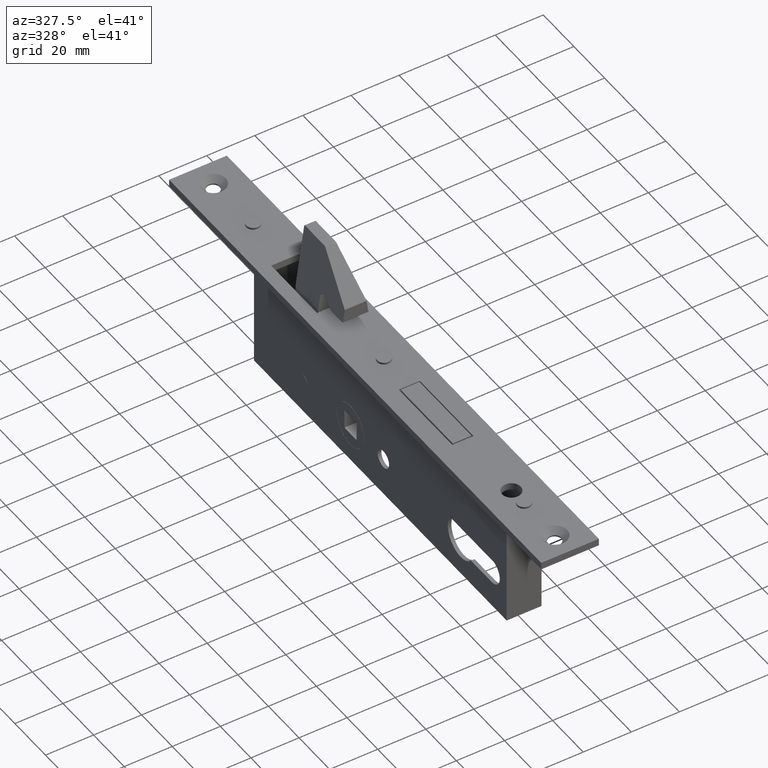
[diagram: clean part render]
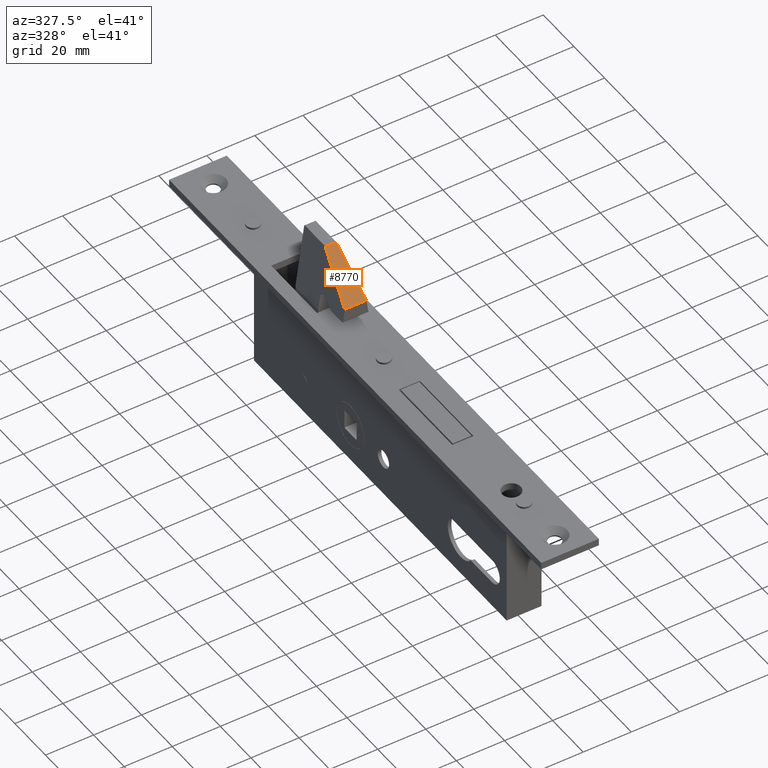
[diagram: same view with one face highlighted and labeled with its STEP entity id]
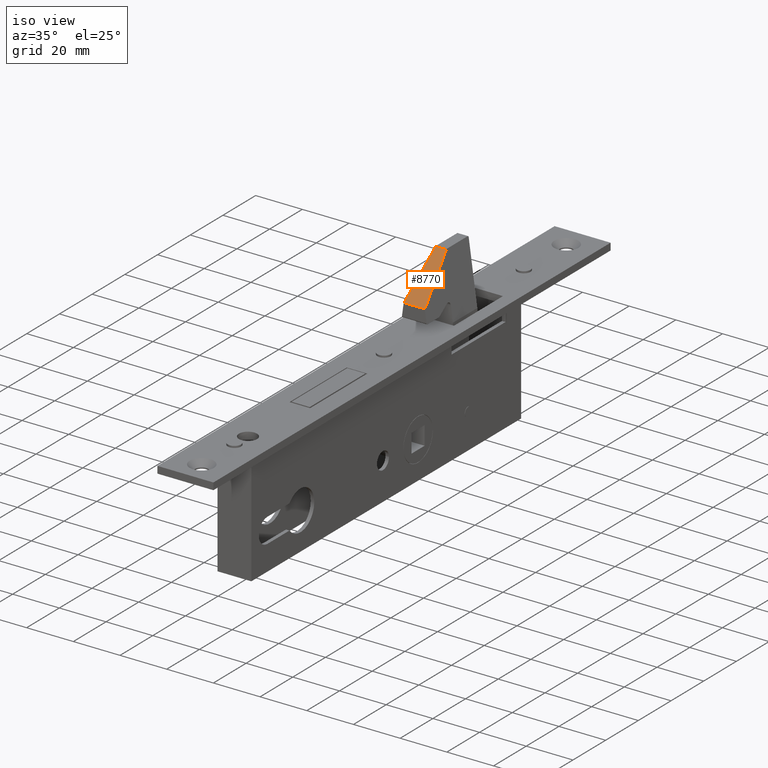
[diagram: same view with one face highlighted and labeled with its STEP entity id]
A machine part, auxiliary view. The second image highlights one B-rep face of the part: STEP entity #8770.
A second angle (iso view) of the same face is appended — the face is thin or edge-on in the first view.
In plain terms, the highlighted planar face has unit normal (0, 0.7071, -0.7071).
Its self-contained STEP definition (entity closure, byte-faithful):
#2335 = EDGE_CURVE ( 'NONE', #3515, #9040, #7419, .T. ) ;
#2584 = VECTOR ( 'NONE', #10966, 1000.000000000000000 ) ;
#2849 = VERTEX_POINT ( 'NONE', #10481 ) ;
#2882 = EDGE_LOOP ( 'NONE', ( #7698, #11990, #7528, #4345 ) ) ;
#3179 = VECTOR ( 'NONE', #10443, 1000.000000000000000 ) ;
#3515 = VERTEX_POINT ( 'NONE', #9179 ) ;
#4345 = ORIENTED_EDGE ( 'NONE', *, *, #8187, .T. ) ;
#4397 = FACE_OUTER_BOUND ( 'NONE', #2882, .T. ) ;
#4685 = CARTESIAN_POINT ( 'NONE',  ( 6.000000000000000000, 156.3535533905932766, 30.85355339059328728 ) ) ;
#5460 = LINE ( 'NONE', #9915, #12566 ) ;
#6105 = CARTESIAN_POINT ( 'NONE',  ( 6.000000000000000000, 140.1464466094067234, 14.64644660940677667 ) ) ;
#6408 = CARTESIAN_POINT ( 'NONE',  ( 4.555598012991969092, 139.8996943064578033, 14.39969430645783532 ) ) ;
#6873 = EDGE_CURVE ( 'NONE', #2849, #10556, #7337, .T. ) ;
#7207 = DIRECTION ( 'NONE',  ( -0.09773905664828931583, -0.7037212078676844396, -0.7037212078676823301 ) ) ;
#7337 = LINE ( 'NONE', #6105, #2584 ) ;
#7419 = LINE ( 'NONE', #4685, #11274 ) ;
#7528 = ORIENTED_EDGE ( 'NONE', *, *, #6873, .T. ) ;
#7698 = ORIENTED_EDGE ( 'NONE', *, *, #2335, .T. ) ;
#7823 = CARTESIAN_POINT ( 'NONE',  ( 4.521326859804616127, 140.1464466094067234, 14.64644660940677490 ) ) ;
#8187 = EDGE_CURVE ( 'NONE', #10556, #3515, #10411, .T. ) ;
#8530 = AXIS2_PLACEMENT_3D ( 'NONE', #11146, #10235, #12061 ) ;
#8770 = ADVANCED_FACE ( 'NONE', ( #4397 ), #10154, .F. ) ;
#9040 = VERTEX_POINT ( 'NONE', #10531 ) ;
#9179 = CARTESIAN_POINT ( 'NONE',  ( 2.270339806862046839, 156.3535533905932766, 30.85355339059328728 ) ) ;
#9915 = CARTESIAN_POINT ( 'NONE',  ( -4.440962934657994410, 140.7250668704623706, 15.22506687046242035 ) ) ;
#10154 = PLANE ( 'NONE',  #8530 ) ;
#10235 = DIRECTION ( 'NONE',  ( 0.000000000000000000, 0.7071067811865465735, -0.7071067811865485719 ) ) ;
#10411 = LINE ( 'NONE', #6408, #3179 ) ;
#10443 = DIRECTION ( 'NONE',  ( -0.09773905664828914930, 0.7037212078676843285, 0.7037212078676824412 ) ) ;
#10481 = CARTESIAN_POINT ( 'NONE',  ( -4.521326859804611686, 140.1464466094067234, 14.64644660940677490 ) ) ;
#10531 = CARTESIAN_POINT ( 'NONE',  ( -2.270339806862040621, 156.3535533905932766, 30.85355339059328728 ) ) ;
#10556 = VERTEX_POINT ( 'NONE', #7823 ) ;
#10648 = EDGE_CURVE ( 'NONE', #9040, #2849, #5460, .T. ) ;
#10966 = DIRECTION ( 'NONE',  ( 1.000000000000000000, -0.000000000000000000, -0.000000000000000000 ) ) ;
#11146 = CARTESIAN_POINT ( 'NONE',  ( 6.000000000000000000, 140.0000000000000000, 14.50000000000006040 ) ) ;
#11274 = VECTOR ( 'NONE', #11481, 1000.000000000000000 ) ;
#11481 = DIRECTION ( 'NONE',  ( -1.000000000000000000, 0.000000000000000000, 0.000000000000000000 ) ) ;
#11990 = ORIENTED_EDGE ( 'NONE', *, *, #10648, .T. ) ;
#12061 = DIRECTION ( 'NONE',  ( 0.000000000000000000, 0.7071067811865485719, 0.7071067811865465735 ) ) ;
#12566 = VECTOR ( 'NONE', #7207, 1000.000000000000114 ) ;